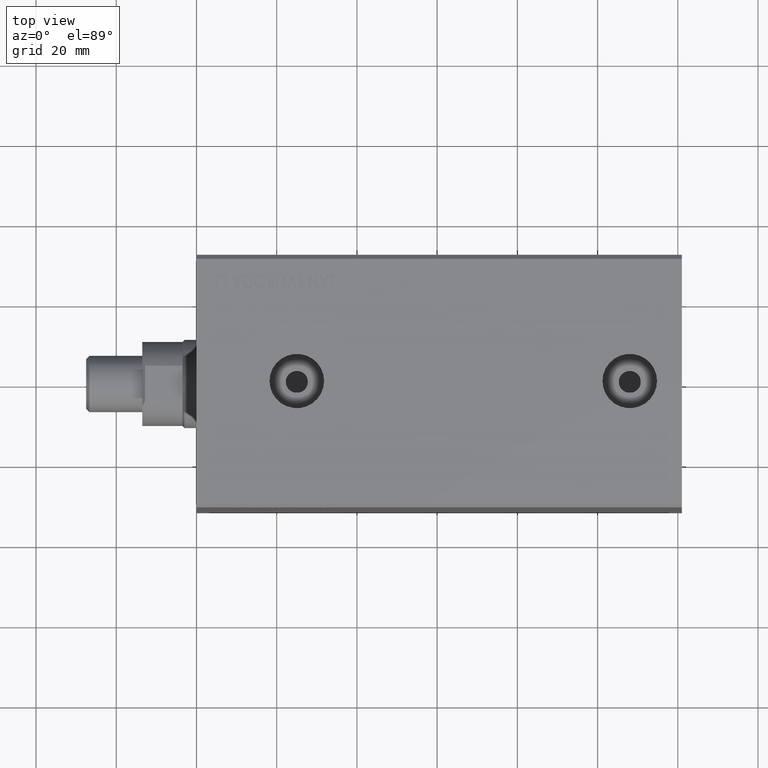
[diagram: clean part render]
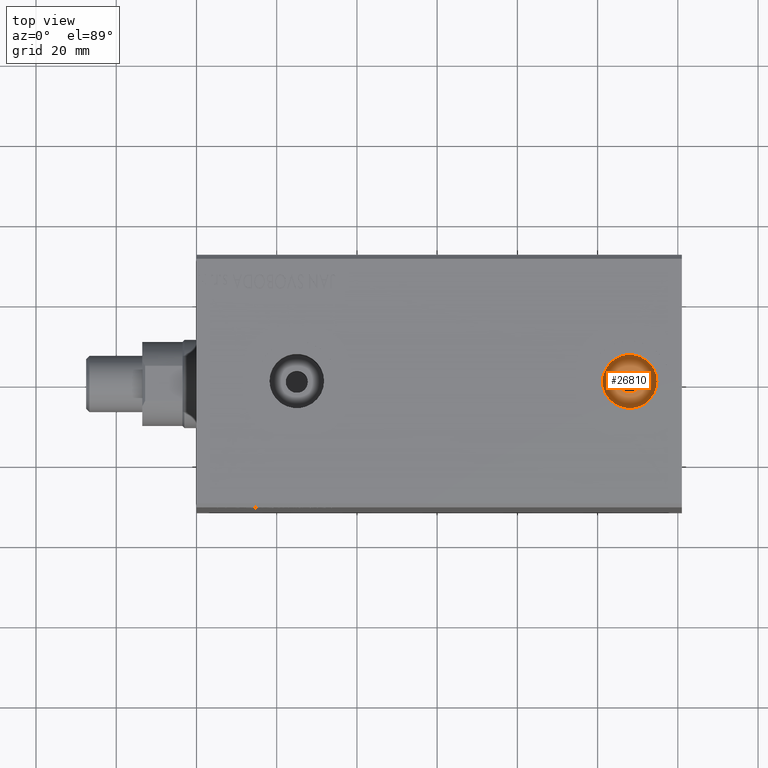
[diagram: same view with one face highlighted and labeled with its STEP entity id]
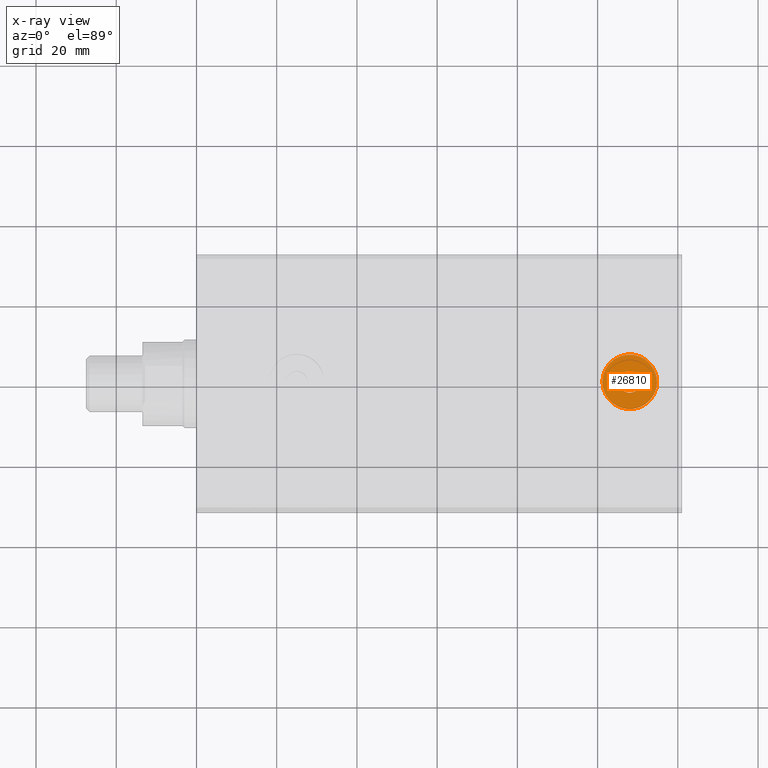
[diagram: x-ray of the same camera — body ghosted, the highlighted face saturated]
A machine part, top view. The second image highlights one B-rep face of the part: STEP entity #26810.
The next image is the same camera in x-ray: the body ghosted, the highlighted face saturated — about 0% of this face is hidden behind the body in this view.
In plain terms, the highlighted planar face has unit normal (0, 0, 1).
Its self-contained STEP definition (entity closure, byte-faithful):
#768 = DIRECTION ( 'NONE',  ( 1.000000000000000000, 0.000000000000000000, -0.000000000000000000 ) ) ;
#980 = CARTESIAN_POINT ( 'NONE',  ( 101.2000000000000028, 8.327598234201995202E-16, 29.23999999999999488 ) ) ;
#2718 = CIRCLE ( 'NONE', #34708, 6.800000000000000711 ) ;
#3259 = VERTEX_POINT ( 'NONE', #37155 ) ;
#3513 = AXIS2_PLACEMENT_3D ( 'NONE', #37175, #33067, #36719 ) ;
#5540 = DIRECTION ( 'NONE',  ( 1.000000000000000000, 0.000000000000000000, 0.000000000000000000 ) ) ;
#6015 = DIRECTION ( 'NONE',  ( 0.000000000000000000, 0.000000000000000000, 1.000000000000000000 ) ) ;
#7838 = DIRECTION ( 'NONE',  ( 0.000000000000000000, 0.000000000000000000, 1.000000000000000000 ) ) ;
#9282 = VERTEX_POINT ( 'NONE', #41129 ) ;
#11455 = ORIENTED_EDGE ( 'NONE', *, *, #13720, .F. ) ;
#12807 = AXIS2_PLACEMENT_3D ( 'NONE', #14237, #7838, #768 ) ;
#13542 = ORIENTED_EDGE ( 'NONE', *, *, #42697, .T. ) ;
#13720 = EDGE_CURVE ( 'NONE', #9282, #3259, #42397, .T. ) ;
#14237 = CARTESIAN_POINT ( 'NONE',  ( 108.0000000000000000, 0.000000000000000000, 29.23999999999999488 ) ) ;
#15726 = AXIS2_PLACEMENT_3D ( 'NONE', #24011, #6015, #38143 ) ;
#15962 = DIRECTION ( 'NONE',  ( 1.000000000000000000, 0.000000000000000000, 0.000000000000000000 ) ) ;
#16474 = CARTESIAN_POINT ( 'NONE',  ( 108.0000000000000000, 0.000000000000000000, 29.23999999999999488 ) ) ;
#24011 = CARTESIAN_POINT ( 'NONE',  ( 108.0000000000000000, 0.000000000000000000, 29.23999999999999488 ) ) ;
#24016 = VERTEX_POINT ( 'NONE', #34969 ) ;
#26810 = ADVANCED_FACE ( 'NONE', ( #38413, #39085 ), #39317, .T. ) ;
#27878 = EDGE_CURVE ( 'NONE', #3259, #9282, #37610, .T. ) ;
#28985 = CIRCLE ( 'NONE', #3513, 6.800000000000000711 ) ;
#29634 = CARTESIAN_POINT ( 'NONE',  ( 108.0000000000000000, 0.000000000000000000, 29.23999999999999488 ) ) ;
#31460 = AXIS2_PLACEMENT_3D ( 'NONE', #29634, #43566, #15962 ) ;
#31742 = ORIENTED_EDGE ( 'NONE', *, *, #27878, .F. ) ;
#33067 = DIRECTION ( 'NONE',  ( 0.000000000000000000, 0.000000000000000000, 1.000000000000000000 ) ) ;
#33753 = EDGE_CURVE ( 'NONE', #24016, #41293, #2718, .T. ) ;
#34708 = AXIS2_PLACEMENT_3D ( 'NONE', #16474, #37220, #5540 ) ;
#34969 = CARTESIAN_POINT ( 'NONE',  ( 114.7999999999999972, 0.000000000000000000, 29.23999999999999488 ) ) ;
#35445 = EDGE_LOOP ( 'NONE', ( #11455, #31742 ) ) ;
#36572 = EDGE_LOOP ( 'NONE', ( #43584, #13542 ) ) ;
#36719 = DIRECTION ( 'NONE',  ( 1.000000000000000000, 0.000000000000000000, 0.000000000000000000 ) ) ;
#37155 = CARTESIAN_POINT ( 'NONE',  ( 105.2500000000000000, 3.367778697655239254E-16, 29.23999999999999488 ) ) ;
#37175 = CARTESIAN_POINT ( 'NONE',  ( 108.0000000000000000, 0.000000000000000000, 29.23999999999999488 ) ) ;
#37220 = DIRECTION ( 'NONE',  ( 0.000000000000000000, 0.000000000000000000, 1.000000000000000000 ) ) ;
#37610 = CIRCLE ( 'NONE', #15726, 2.750000000000002665 ) ;
#38143 = DIRECTION ( 'NONE',  ( 1.000000000000000000, 0.000000000000000000, 0.000000000000000000 ) ) ;
#38413 = FACE_BOUND ( 'NONE', #35445, .T. ) ;
#39085 = FACE_OUTER_BOUND ( 'NONE', #36572, .T. ) ;
#39317 = PLANE ( 'NONE',  #12807 ) ;
#41129 = CARTESIAN_POINT ( 'NONE',  ( 110.7500000000000000, 0.000000000000000000, 29.23999999999999488 ) ) ;
#41293 = VERTEX_POINT ( 'NONE', #980 ) ;
#42397 = CIRCLE ( 'NONE', #31460, 2.750000000000002665 ) ;
#42697 = EDGE_CURVE ( 'NONE', #41293, #24016, #28985, .T. ) ;
#43566 = DIRECTION ( 'NONE',  ( 0.000000000000000000, 0.000000000000000000, 1.000000000000000000 ) ) ;
#43584 = ORIENTED_EDGE ( 'NONE', *, *, #33753, .T. ) ;